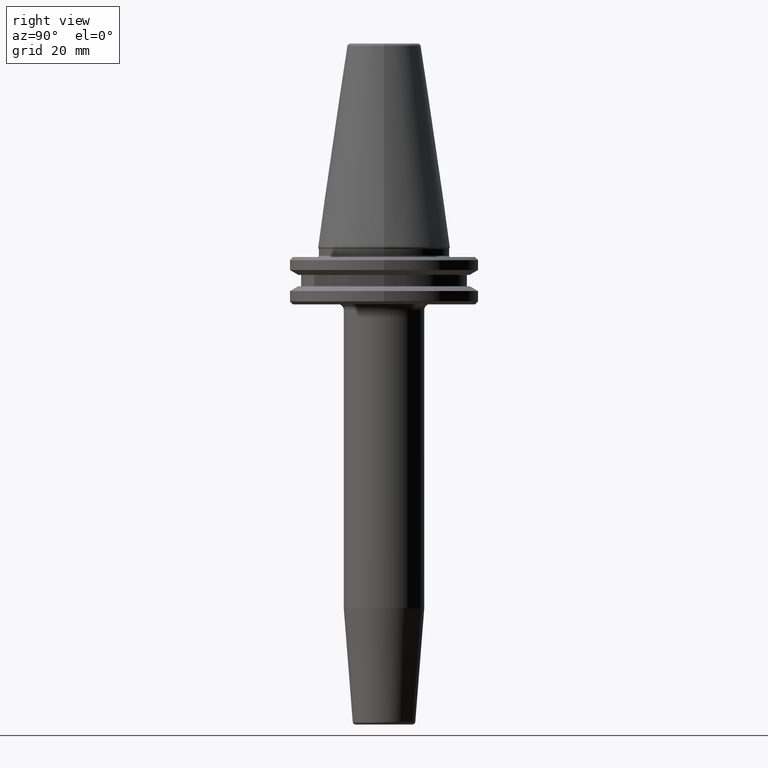
[diagram: clean part render]
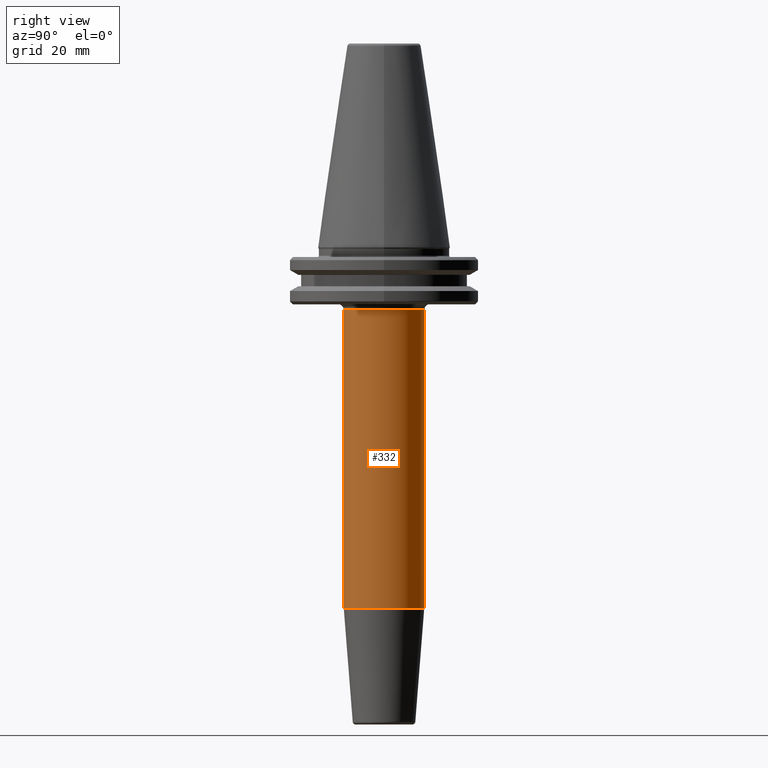
[diagram: same view with one face highlighted and labeled with its STEP entity id]
A machine part, right view. The second image highlights one B-rep face of the part: STEP entity #332.
In plain terms, the highlighted cylindrical surface (partial cylindrical patch) has radius 13.5 mm, axis along (-0, 0, -1).
Its self-contained STEP definition (entity closure, byte-faithful):
#9 = DIRECTION ( 'NONE',  ( -0.0000000000000000000, 1.256330602389183300E-016, -1.000000000000000000 ) ) ;
#36 = LINE ( 'NONE', #699, #271 ) ;
#59 = VERTEX_POINT ( 'NONE', #599 ) ;
#62 = DIRECTION ( 'NONE',  ( 0.0000000000000000000, 1.000000000000000000, 0.0000000000000000000 ) ) ;
#148 = CIRCLE ( 'NONE', #1236, 13.50000000000000500 ) ;
#201 = CARTESIAN_POINT ( 'NONE',  ( 0.0000000000000000000, 13.50000000000000000, -20.98284271247460700 ) ) ;
#271 = VECTOR ( 'NONE', #1081, 1000.000000000000000 ) ;
#314 = ORIENTED_EDGE ( 'NONE', *, *, #1232, .F. ) ;
#332 = ADVANCED_FACE ( 'NONE', ( #560 ), #1030, .T. ) ;
#422 = ORIENTED_EDGE ( 'NONE', *, *, #856, .T. ) ;
#557 = DIRECTION ( 'NONE',  ( -0.0000000000000000000, 1.256330602389183300E-016, -1.000000000000000000 ) ) ;
#560 = FACE_OUTER_BOUND ( 'NONE', #1084, .T. ) ;
#597 = DIRECTION ( 'NONE',  ( 0.0000000000000000000, 1.000000000000000000, 0.0000000000000000000 ) ) ;
#599 = CARTESIAN_POINT ( 'NONE',  ( 1.653273178848929800E-015, -13.50000000000003400, -20.98284271247460700 ) ) ;
#609 = CARTESIAN_POINT ( 'NONE',  ( 1.653273178848927500E-015, 13.50000000000000000, -120.9598448871996500 ) ) ;
#642 = DIRECTION ( 'NONE',  ( -0.0000000000000000000, 1.256330602389183300E-016, -1.000000000000000000 ) ) ;
#699 = CARTESIAN_POINT ( 'NONE',  ( 0.0000000000000000000, 13.50000000000001200, -160.0000000000000000 ) ) ;
#702 = VERTEX_POINT ( 'NONE', #884 ) ;
#790 = CARTESIAN_POINT ( 'NONE',  ( 0.0000000000000000000, 4.467959865220142400E-016, -160.0000000000000000 ) ) ;
#826 = CARTESIAN_POINT ( 'NONE',  ( 1.653273178848928400E-015, -13.50000000000001200, -160.0000000000000000 ) ) ;
#851 = VERTEX_POINT ( 'NONE', #201 ) ;
#856 = EDGE_CURVE ( 'NONE', #59, #702, #1256, .T. ) ;
#884 = CARTESIAN_POINT ( 'NONE',  ( 0.0000000000000000000, -13.50000000000001100, -120.9598448871996500 ) ) ;
#947 = ORIENTED_EDGE ( 'NONE', *, *, #1098, .T. ) ;
#993 = VECTOR ( 'NONE', #1056, 1000.000000000000000 ) ;
#1030 = CYLINDRICAL_SURFACE ( 'NONE', #1139, 13.50000000000001200 ) ;
#1044 = AXIS2_PLACEMENT_3D ( 'NONE', #1230, #642, #62 ) ;
#1049 = EDGE_CURVE ( 'NONE', #1216, #702, #148, .T. ) ;
#1056 = DIRECTION ( 'NONE',  ( -0.0000000000000000000, 1.256330602389183300E-016, -1.000000000000000000 ) ) ;
#1081 = DIRECTION ( 'NONE',  ( -0.0000000000000000000, 1.256330602389183300E-016, -1.000000000000000000 ) ) ;
#1084 = EDGE_LOOP ( 'NONE', ( #947, #422, #1253, #314 ) ) ;
#1091 = CIRCLE ( 'NONE', #1044, 13.50000000000001800 ) ;
#1098 = EDGE_CURVE ( 'NONE', #851, #59, #1091, .T. ) ;
#1115 = CARTESIAN_POINT ( 'NONE',  ( 0.0000000000000000000, -4.457938172501148500E-015, -120.9598448871996500 ) ) ;
#1139 = AXIS2_PLACEMENT_3D ( 'NONE', #790, #9, #597 ) ;
#1216 = VERTEX_POINT ( 'NONE', #609 ) ;
#1225 = DIRECTION ( 'NONE',  ( 0.0000000000000000000, 1.000000000000000000, 0.0000000000000000000 ) ) ;
#1230 = CARTESIAN_POINT ( 'NONE',  ( 0.0000000000000000000, -1.701835490922485000E-014, -20.98284271247460700 ) ) ;
#1232 = EDGE_CURVE ( 'NONE', #851, #1216, #36, .T. ) ;
#1236 = AXIS2_PLACEMENT_3D ( 'NONE', #1115, #557, #1225 ) ;
#1253 = ORIENTED_EDGE ( 'NONE', *, *, #1049, .F. ) ;
#1256 = LINE ( 'NONE', #826, #993 ) ;